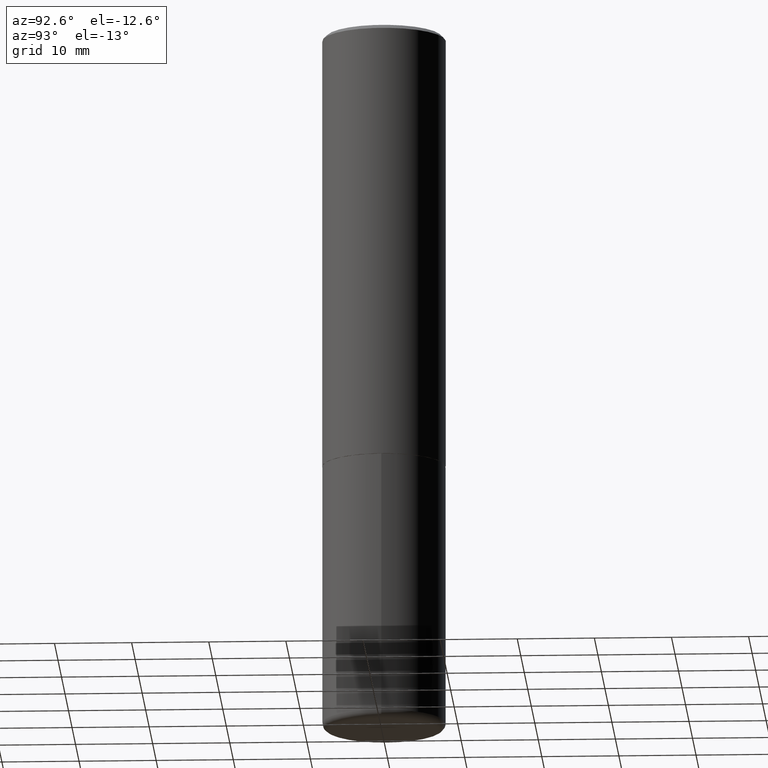
[diagram: clean part render]
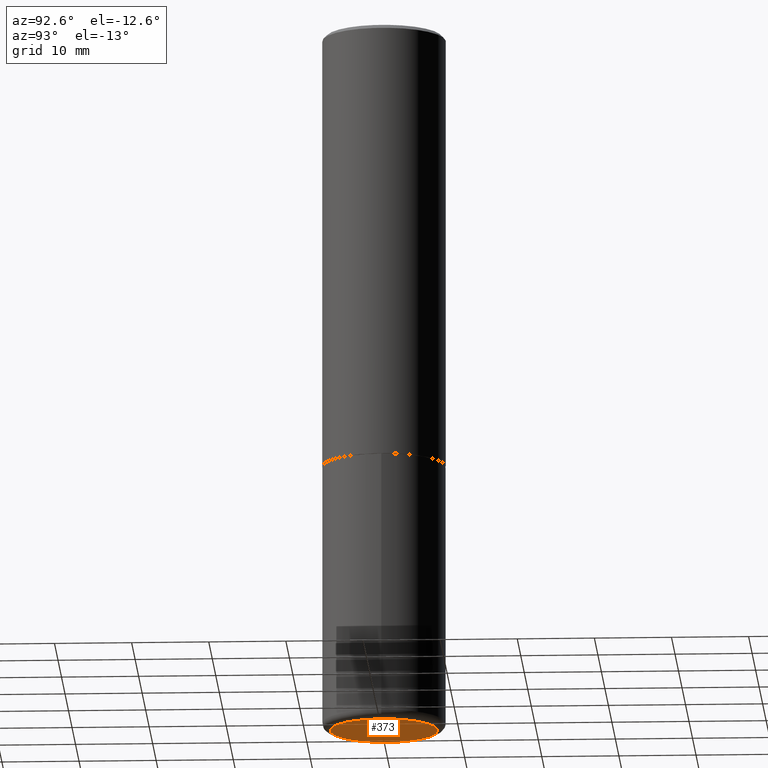
[diagram: same view with one face highlighted and labeled with its STEP entity id]
A machine part, auxiliary view. The second image highlights one B-rep face of the part: STEP entity #373.
In plain terms, the highlighted planar face has unit normal (0, -0, -1).
Its self-contained STEP definition (entity closure, byte-faithful):
#40 = CARTESIAN_POINT ( 'NONE',  ( 8.857488016002564476E-29, -1.264614540928987199E-14, -3.621999999999999886 ) ) ;
#44 = EDGE_CURVE ( 'NONE', #98, #410, #64, .T. ) ;
#64 = CIRCLE ( 'NONE', #338, 0.2755500000000000171 ) ;
#66 = DIRECTION ( 'NONE',  ( 1.000000000000000000, -6.982962677686268288E-15, 0.000000000000000000 ) ) ;
#68 = DIRECTION ( 'NONE',  ( -2.445468806185136597E-29, 3.491481338843145583E-15, 1.000000000000000000 ) ) ;
#70 = DIRECTION ( 'NONE',  ( -1.000000000000000000, 6.982962677686265922E-15, -4.876176775795935793E-29 ) ) ;
#98 = VERTEX_POINT ( 'NONE', #275 ) ;
#130 = CARTESIAN_POINT ( 'NONE',  ( 8.857488016002564476E-29, -1.264614540928987199E-14, -3.621999999999999886 ) ) ;
#136 = EDGE_LOOP ( 'NONE', ( #208, #233 ) ) ;
#160 = FACE_OUTER_BOUND ( 'NONE', #136, .T. ) ;
#188 = DIRECTION ( 'NONE',  ( 1.000000000000000000, -6.982962677686268288E-15, 0.000000000000000000 ) ) ;
#199 = CIRCLE ( 'NONE', #260, 0.2755500000000000171 ) ;
#208 = ORIENTED_EDGE ( 'NONE', *, *, #383, .F. ) ;
#232 = CARTESIAN_POINT ( 'NONE',  ( 0.2755500000000000171, -1.457030077512632343E-14, -3.621999999999999886 ) ) ;
#233 = ORIENTED_EDGE ( 'NONE', *, *, #44, .F. ) ;
#260 = AXIS2_PLACEMENT_3D ( 'NONE', #130, #391, #188 ) ;
#275 = CARTESIAN_POINT ( 'NONE',  ( -0.2755500000000000171, -1.047948579958296492E-14, -3.621999999999999886 ) ) ;
#291 = DIRECTION ( 'NONE',  ( 2.438088387897960049E-29, -3.491481338843145188E-15, -1.000000000000000000 ) ) ;
#292 = CARTESIAN_POINT ( 'NONE',  ( 8.857488016002564476E-29, -1.264614540928987199E-14, -3.621999999999999886 ) ) ;
#338 = AXIS2_PLACEMENT_3D ( 'NONE', #292, #68, #66 ) ;
#373 = ADVANCED_FACE ( 'NONE', ( #160 ), #392, .T. ) ;
#381 = AXIS2_PLACEMENT_3D ( 'NONE', #40, #291, #70 ) ;
#383 = EDGE_CURVE ( 'NONE', #410, #98, #199, .T. ) ;
#391 = DIRECTION ( 'NONE',  ( -2.445468806185136597E-29, 3.491481338843145583E-15, 1.000000000000000000 ) ) ;
#392 = PLANE ( 'NONE',  #381 ) ;
#410 = VERTEX_POINT ( 'NONE', #232 ) ;